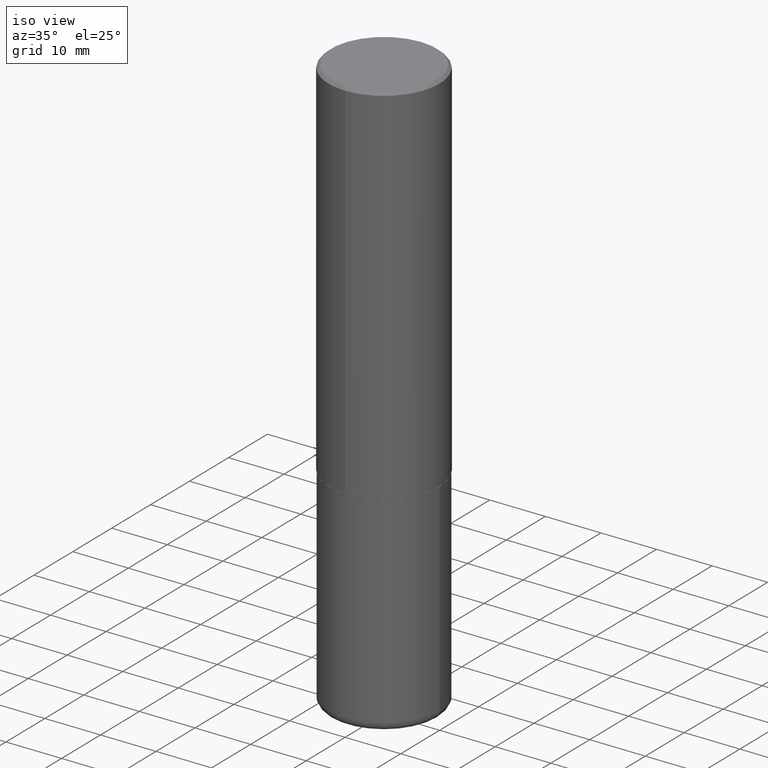
[diagram: clean part render]
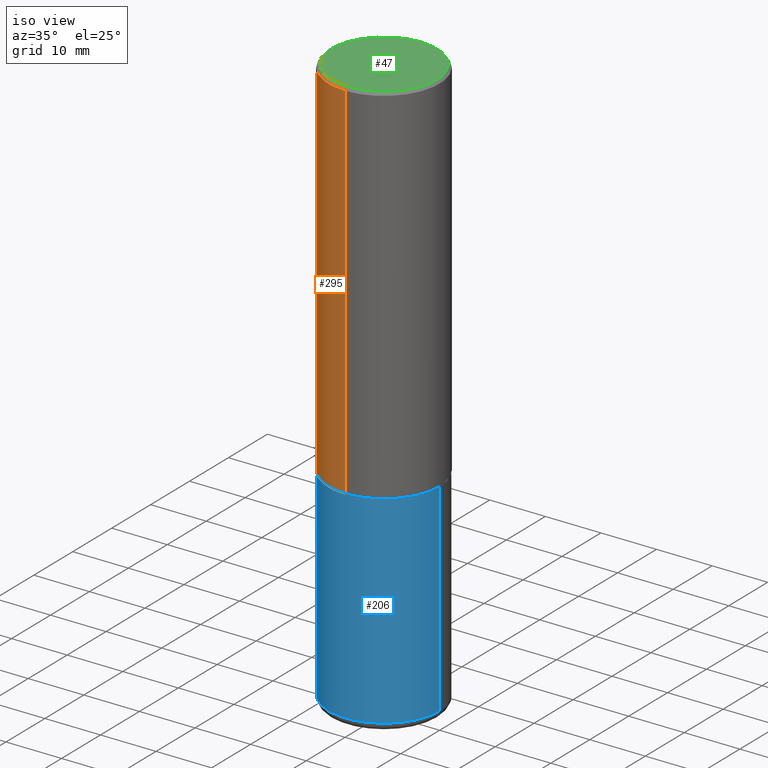
[diagram: same view with three faces highlighted in distinct colors, each labeled with its STEP entity id]
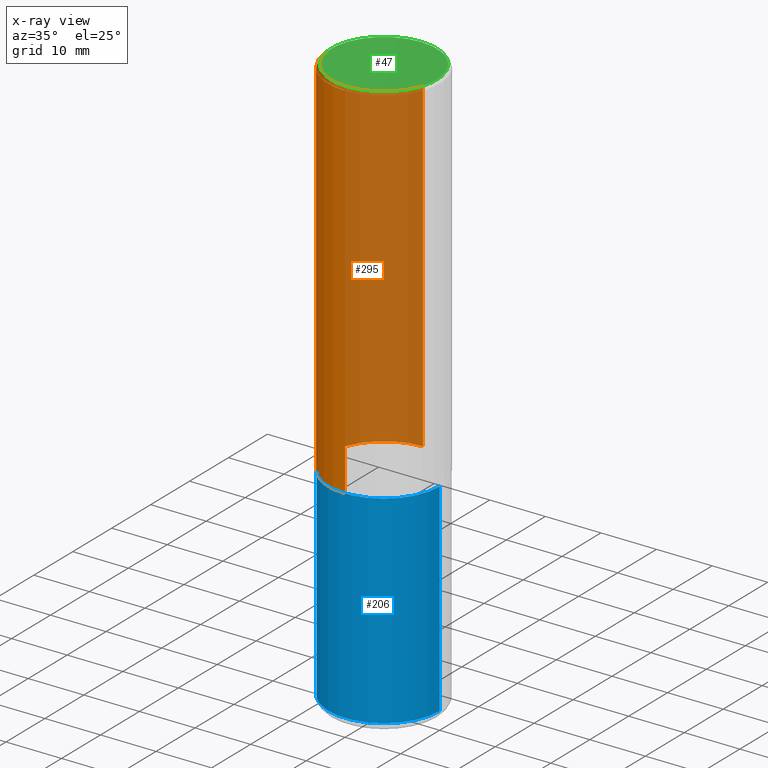
[diagram: x-ray of the same camera — body ghosted, the three highlighted faces saturated]
A machine part, iso view with three faces highlighted in distinct colors.
The next image is the same camera in x-ray (body ghosted, the three faces saturated) — at least one of them is partly hidden behind the body in this view.
Their STEP definitions:

[orange] entity #295 — the highlighted cylindrical surface (partial cylindrical patch) has radius 10 mm, axis along (-0, 0, 1).
#29 = CYLINDRICAL_SURFACE ( 'NONE', #222, 0.3937000000000001609 ) ;
#45 = ORIENTED_EDGE ( 'NONE', *, *, #217, .T. ) ;
#59 = FACE_OUTER_BOUND ( 'NONE', #138, .T. ) ;
#82 = DIRECTION ( 'NONE',  ( -2.446448598478591086E-29, 3.490078220512604606E-15, 1.000000000000000000 ) ) ;
#96 = ORIENTED_EDGE ( 'NONE', *, *, #326, .F. ) ;
#102 = CARTESIAN_POINT ( 'NONE',  ( 0.000000000000000000, 0.000000000000000000, 0.000000000000000000 ) ) ;
#103 = VERTEX_POINT ( 'NONE', #394 ) ;
#109 = CARTESIAN_POINT ( 'NONE',  ( 4.892897196957202805E-31, -6.980156441025239140E-17, -0.02000000000000008715 ) ) ;
#111 = CIRCLE ( 'NONE', #123, 0.3937000000000000499 ) ;
#118 = LINE ( 'NONE', #124, #128 ) ;
#121 = CARTESIAN_POINT ( 'NONE',  ( -2.749192406205021291E-15, -0.3937000000000093758, -2.597399999999999043 ) ) ;
#123 = AXIS2_PLACEMENT_3D ( 'NONE', #109, #203, #172 ) ;
#124 = CARTESIAN_POINT ( 'NONE',  ( -2.749192406205084005E-15, -0.3937000000000001609, 1.374043795415812967E-15 ) ) ;
#128 = VECTOR ( 'NONE', #208, 39.37007874015748143 ) ;
#138 = EDGE_LOOP ( 'NONE', ( #187, #141, #45, #96 ) ) ;
#140 = VECTOR ( 'NONE', #335, 39.37007874015748143 ) ;
#141 = ORIENTED_EDGE ( 'NONE', *, *, #279, .T. ) ;
#148 = CARTESIAN_POINT ( 'NONE',  ( 2.797406750687515181E-15, 0.3937000000000001609, -1.374043795415812967E-15 ) ) ;
#150 = VERTEX_POINT ( 'NONE', #399 ) ;
#172 = DIRECTION ( 'NONE',  ( -6.982962677686265133E-15, -1.000000000000000000, 3.491137977679279424E-15 ) ) ;
#187 = ORIENTED_EDGE ( 'NONE', *, *, #383, .F. ) ;
#203 = DIRECTION ( 'NONE',  ( -2.446448598478591086E-29, 3.490078220512604606E-15, 1.000000000000000000 ) ) ;
#208 = DIRECTION ( 'NONE',  ( -2.446448598478590805E-29, 3.490078220512605001E-15, 1.000000000000000000 ) ) ;
#213 = VERTEX_POINT ( 'NONE', #403 ) ;
#216 = DIRECTION ( 'NONE',  ( -6.982962677686265922E-15, -1.000000000000000000, 4.163344669033672479E-15 ) ) ;
#217 = EDGE_CURVE ( 'NONE', #356, #150, #118, .T. ) ;
#222 = AXIS2_PLACEMENT_3D ( 'NONE', #102, #283, #404 ) ;
#279 = EDGE_CURVE ( 'NONE', #213, #356, #332, .T. ) ;
#283 = DIRECTION ( 'NONE',  ( -2.446448598478591086E-29, 3.490078220512604606E-15, 1.000000000000000000 ) ) ;
#295 = ADVANCED_FACE ( 'NONE', ( #59 ), #29, .T. ) ;
#309 = LINE ( 'NONE', #148, #140 ) ;
#326 = EDGE_CURVE ( 'NONE', #103, #150, #111, .T. ) ;
#332 = CIRCLE ( 'NONE', #338, 0.3937000000000002720 ) ;
#335 = DIRECTION ( 'NONE',  ( -2.446448598478590805E-29, 3.490078220512605001E-15, 1.000000000000000000 ) ) ;
#338 = AXIS2_PLACEMENT_3D ( 'NONE', #376, #82, #216 ) ;
#356 = VERTEX_POINT ( 'NONE', #121 ) ;
#376 = CARTESIAN_POINT ( 'NONE',  ( 6.354405589688293982E-29, -9.065129169959442290E-15, -2.597400000000000375 ) ) ;
#383 = EDGE_CURVE ( 'NONE', #213, #103, #309, .T. ) ;
#394 = CARTESIAN_POINT ( 'NONE',  ( 2.749192406205083217E-15, 0.3936999999999999389, -0.02000000000000146105 ) ) ;
#399 = CARTESIAN_POINT ( 'NONE',  ( -2.700978061722651252E-15, -0.3937000000000001054, -0.01999999999999870978 ) ) ;
#403 = CARTESIAN_POINT ( 'NONE',  ( 2.797406750687547524E-15, 0.3936999999999912236, -2.597400000000002152 ) ) ;
#404 = DIRECTION ( 'NONE',  ( -6.982962677686265922E-15, -1.000000000000000000, 3.490078220512604606E-15 ) ) ;

[blue] entity #206 — the highlighted cylindrical surface (partial cylindrical patch) has radius 10 mm, axis along (-0, 0, 1).
#17 = CARTESIAN_POINT ( 'NONE',  ( 0.3937000000000000499, -1.182145751705511584E-14, -2.598400000000000265 ) ) ;
#43 = ORIENTED_EDGE ( 'NONE', *, *, #318, .T. ) ;
#63 = CYLINDRICAL_SURFACE ( 'NONE', #354, 0.3937000000000001054 ) ;
#64 = VERTEX_POINT ( 'NONE', #209 ) ;
#100 = CARTESIAN_POINT ( 'NONE',  ( -0.3937000000000000499, -8.783487702121314705E-15, -2.598400000000000265 ) ) ;
#107 = ORIENTED_EDGE ( 'NONE', *, *, #375, .F. ) ;
#127 = ORIENTED_EDGE ( 'NONE', *, *, #387, .F. ) ;
#134 = DIRECTION ( 'NONE',  ( 1.000000000000000000, -6.982962677686266711E-15, 4.876176775795935793E-29 ) ) ;
#135 = ORIENTED_EDGE ( 'NONE', *, *, #330, .T. ) ;
#151 = DIRECTION ( 'NONE',  ( 1.000000000000000000, -6.982962677686267499E-15, 0.000000000000000000 ) ) ;
#157 = CARTESIAN_POINT ( 'NONE',  ( 0.3937000000000001054, -2.749192406205084005E-15, 1.919750796630860452E-29 ) ) ;
#173 = VECTOR ( 'NONE', #284, 39.37007874015748143 ) ;
#178 = DIRECTION ( 'NONE',  ( 1.000000000000000000, -6.982962677686266711E-15, 0.000000000000000000 ) ) ;
#180 = FACE_OUTER_BOUND ( 'NONE', #278, .T. ) ;
#206 = ADVANCED_FACE ( 'NONE', ( #180 ), #63, .T. ) ;
#207 = DIRECTION ( 'NONE',  ( -2.445468806185136877E-29, 3.491481338843145188E-15, 1.000000000000000000 ) ) ;
#209 = CARTESIAN_POINT ( 'NONE',  ( 0.3937000000000002164, -1.683871620097271431E-14, -4.035400000000000098 ) ) ;
#238 = CARTESIAN_POINT ( 'NONE',  ( 0.000000000000000000, 0.000000000000000000, 0.000000000000000000 ) ) ;
#268 = LINE ( 'NONE', #157, #173 ) ;
#270 = AXIS2_PLACEMENT_3D ( 'NONE', #272, #397, #178 ) ;
#272 = CARTESIAN_POINT ( 'NONE',  ( 9.868444820479501934E-29, -1.408952379476762952E-14, -4.035400000000000098 ) ) ;
#274 = LINE ( 'NONE', #358, #305 ) ;
#278 = EDGE_LOOP ( 'NONE', ( #127, #43, #135, #107 ) ) ;
#284 = DIRECTION ( 'NONE',  ( -2.445468806185136877E-29, 3.491481338843145188E-15, 1.000000000000000000 ) ) ;
#290 = CIRCLE ( 'NONE', #270, 0.3937000000000001054 ) ;
#304 = VERTEX_POINT ( 'NONE', #388 ) ;
#305 = VECTOR ( 'NONE', #207, 39.37007874015748143 ) ;
#318 = EDGE_CURVE ( 'NONE', #304, #64, #290, .T. ) ;
#329 = DIRECTION ( 'NONE',  ( -2.445468806185136597E-29, 3.491481338843145583E-15, 1.000000000000000000 ) ) ;
#330 = EDGE_CURVE ( 'NONE', #64, #405, #268, .T. ) ;
#339 = DIRECTION ( 'NONE',  ( -2.445468806185136597E-29, 3.491481338843145583E-15, 1.000000000000000000 ) ) ;
#343 = VERTEX_POINT ( 'NONE', #100 ) ;
#354 = AXIS2_PLACEMENT_3D ( 'NONE', #238, #329, #134 ) ;
#358 = CARTESIAN_POINT ( 'NONE',  ( -0.3937000000000001054, 2.797406750687515181E-15, -1.936584745033357016E-29 ) ) ;
#365 = CARTESIAN_POINT ( 'NONE',  ( 6.354306145991459756E-29, -9.072265110850031044E-15, -2.598400000000000265 ) ) ;
#375 = EDGE_CURVE ( 'NONE', #343, #405, #402, .T. ) ;
#380 = AXIS2_PLACEMENT_3D ( 'NONE', #365, #339, #151 ) ;
#387 = EDGE_CURVE ( 'NONE', #304, #343, #274, .T. ) ;
#388 = CARTESIAN_POINT ( 'NONE',  ( -0.3937000000000002164, -1.129211704408011394E-14, -4.035400000000000098 ) ) ;
#397 = DIRECTION ( 'NONE',  ( -2.445468806185136597E-29, 3.491481338843145583E-15, 1.000000000000000000 ) ) ;
#402 = CIRCLE ( 'NONE', #380, 0.3937000000000000499 ) ;
#405 = VERTEX_POINT ( 'NONE', #17 ) ;

[green] entity #47 — the highlighted planar face has unit normal (0, -0, -1).
#47 = ADVANCED_FACE ( 'NONE', ( #193 ), #86, .F. ) ;
#48 = CARTESIAN_POINT ( 'NONE',  ( -2.632373081744935921E-15, -0.3736999999999999211, 1.384819622997344612E-15 ) ) ;
#67 = DIRECTION ( 'NONE',  ( -6.982962677686265133E-15, -1.000000000000000000, 3.490078220512604606E-15 ) ) ;
#72 = CARTESIAN_POINT ( 'NONE',  ( -1.971284477073616716E-45, 2.812214008562344715E-31, 8.057739199178466551E-17 ) ) ;
#86 = PLANE ( 'NONE',  #313 ) ;
#137 = VERTEX_POINT ( 'NONE', #48 ) ;
#142 = CARTESIAN_POINT ( 'NONE',  ( 2.609533152651356620E-15, 0.3736999999999999211, -1.263953535009667799E-15 ) ) ;
#145 = AXIS2_PLACEMENT_3D ( 'NONE', #72, #231, #194 ) ;
#155 = CIRCLE ( 'NONE', #360, 0.3736999999999999211 ) ;
#193 = FACE_OUTER_BOUND ( 'NONE', #219, .T. ) ;
#194 = DIRECTION ( 'NONE',  ( -6.982962677686265133E-15, -1.000000000000000000, 3.490078220512604606E-15 ) ) ;
#210 = DIRECTION ( 'NONE',  ( 6.982962677686265922E-15, 1.000000000000000000, -3.490078220512605001E-15 ) ) ;
#211 = ORIENTED_EDGE ( 'NONE', *, *, #261, .T. ) ;
#219 = EDGE_LOOP ( 'NONE', ( #315, #211 ) ) ;
#231 = DIRECTION ( 'NONE',  ( -2.446448598478591086E-29, 3.490078220512604606E-15, 1.000000000000000000 ) ) ;
#261 = EDGE_CURVE ( 'NONE', #137, #361, #155, .T. ) ;
#281 = CIRCLE ( 'NONE', #145, 0.3736999999999999211 ) ;
#294 = CARTESIAN_POINT ( 'NONE',  ( -1.971284477073616716E-45, 2.812214008562344715E-31, 8.057739199178466551E-17 ) ) ;
#313 = AXIS2_PLACEMENT_3D ( 'NONE', #142, #334, #210 ) ;
#315 = ORIENTED_EDGE ( 'NONE', *, *, #340, .T. ) ;
#334 = DIRECTION ( 'NONE',  ( 2.446448598478590525E-29, -3.490078220512605001E-15, -1.000000000000000000 ) ) ;
#340 = EDGE_CURVE ( 'NONE', #361, #137, #281, .T. ) ;
#360 = AXIS2_PLACEMENT_3D ( 'NONE', #294, #384, #67 ) ;
#361 = VERTEX_POINT ( 'NONE', #389 ) ;
#384 = DIRECTION ( 'NONE',  ( -2.446448598478591086E-29, 3.490078220512604606E-15, 1.000000000000000000 ) ) ;
#389 = CARTESIAN_POINT ( 'NONE',  ( 2.679362779428219918E-15, 0.3736999999999999211, -1.223664839013775331E-15 ) ) ;